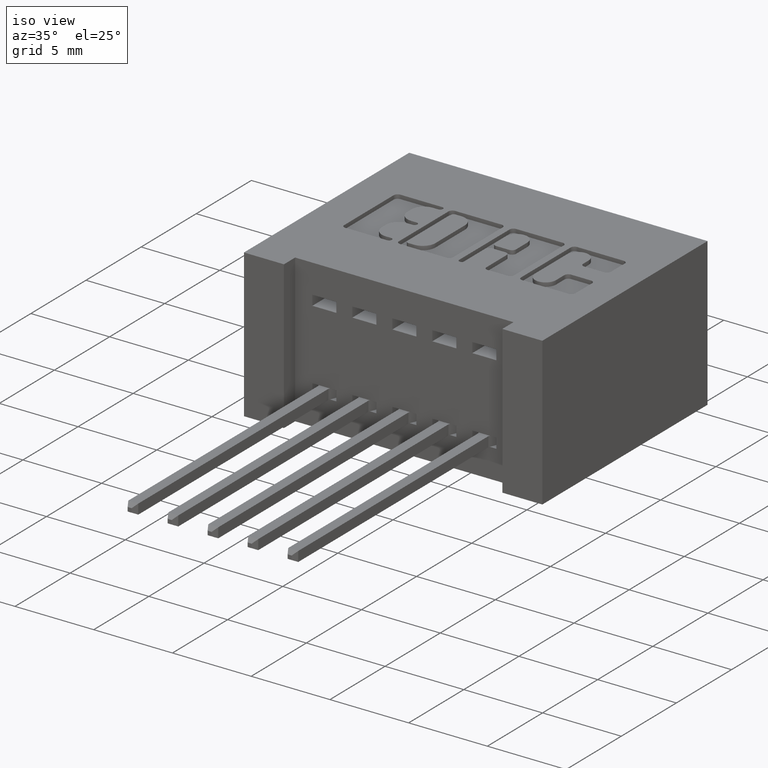
[diagram: clean part render]
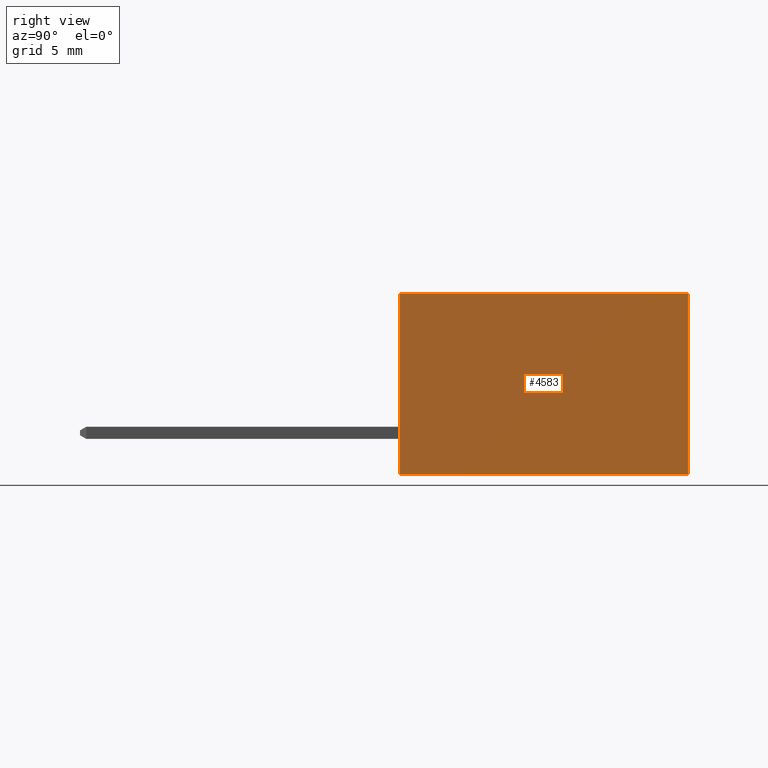
[diagram: tour spotlight — one face highlighted and labeled with its STEP entity id]
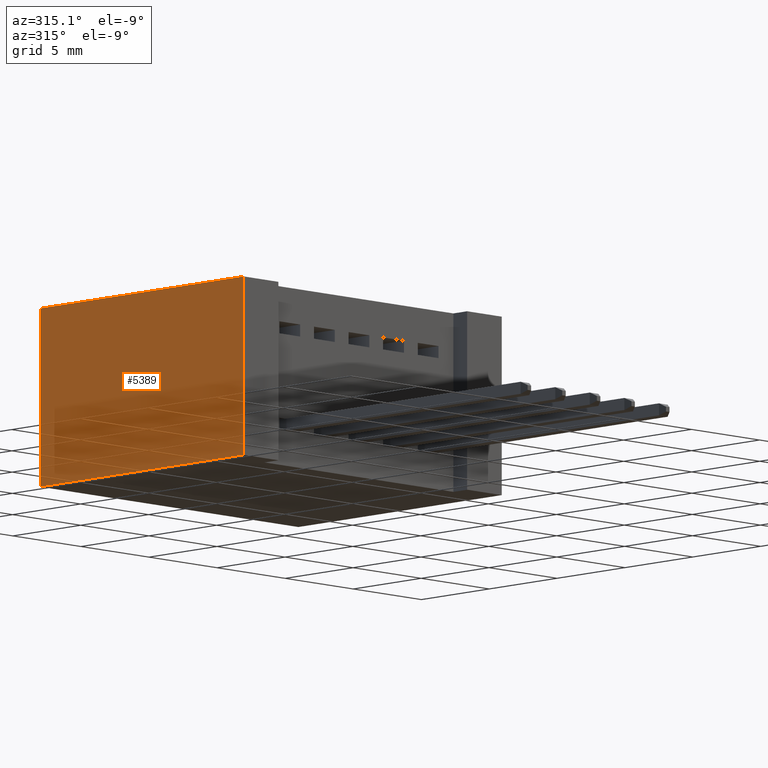
[diagram: tour spotlight — one face highlighted and labeled with its STEP entity id]
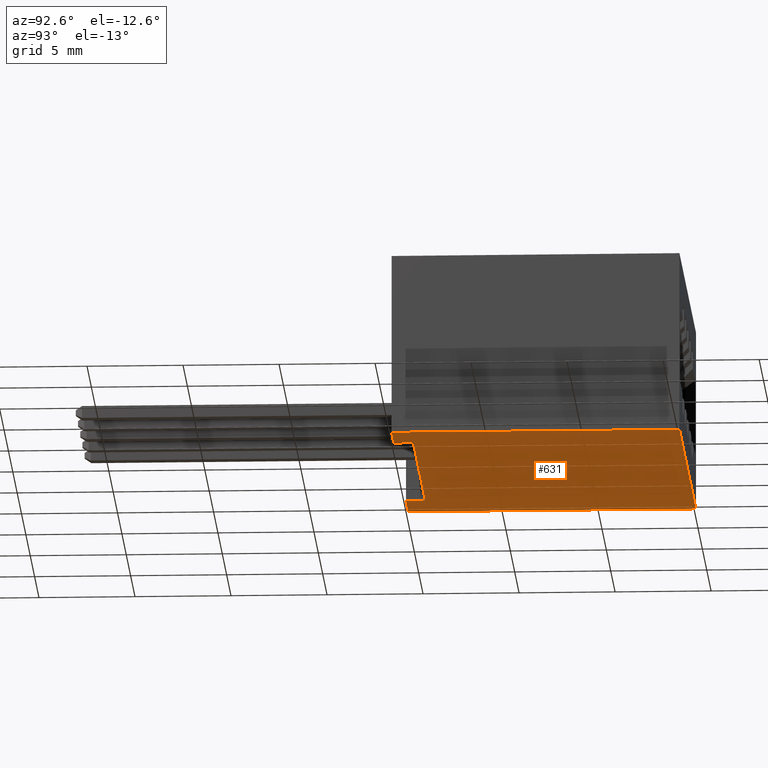
[diagram: tour spotlight — one face highlighted and labeled with its STEP entity id]
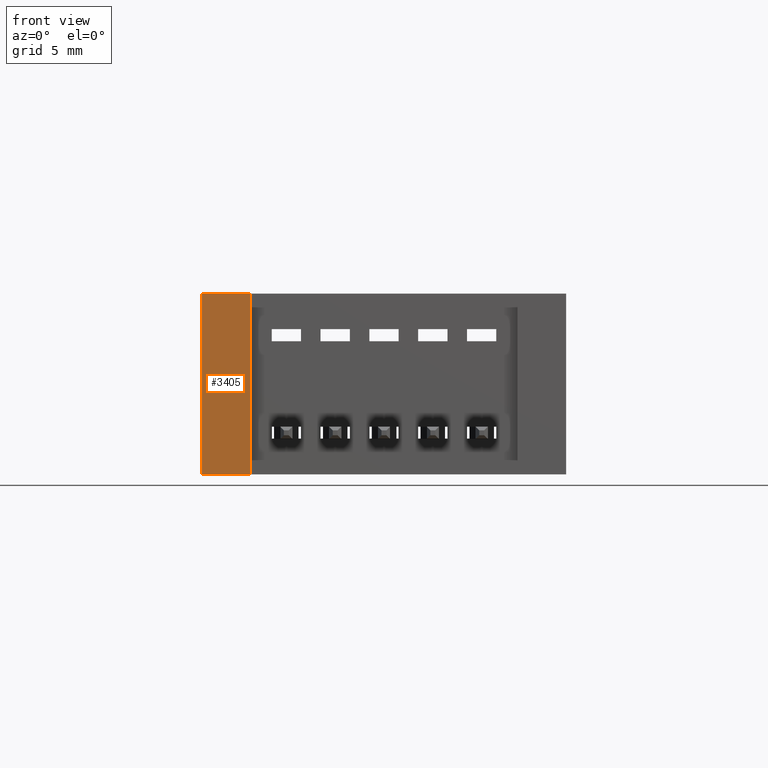
[diagram: tour spotlight — one face highlighted and labeled with its STEP entity id]
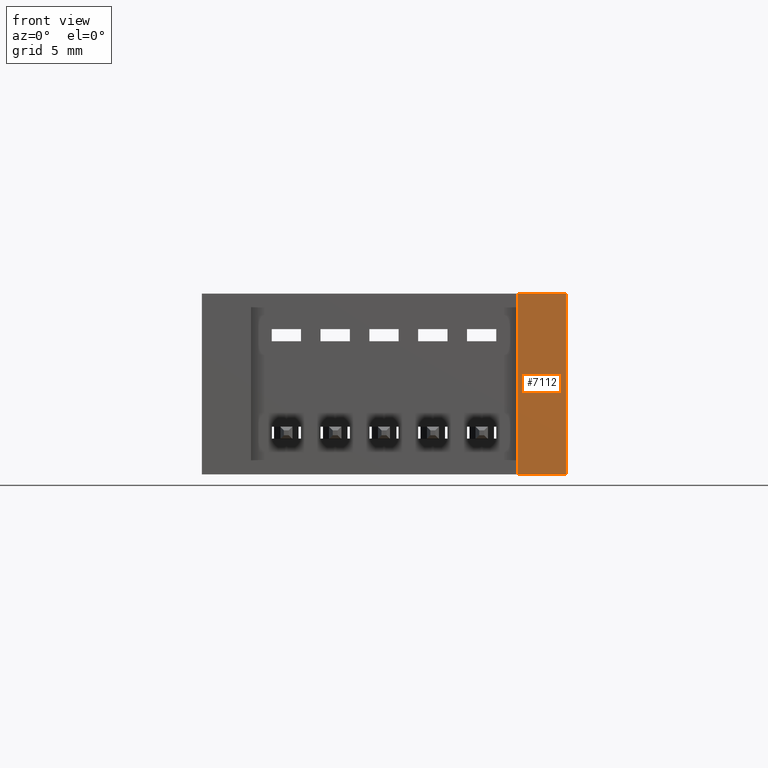
[diagram: tour spotlight — one face highlighted and labeled with its STEP entity id]
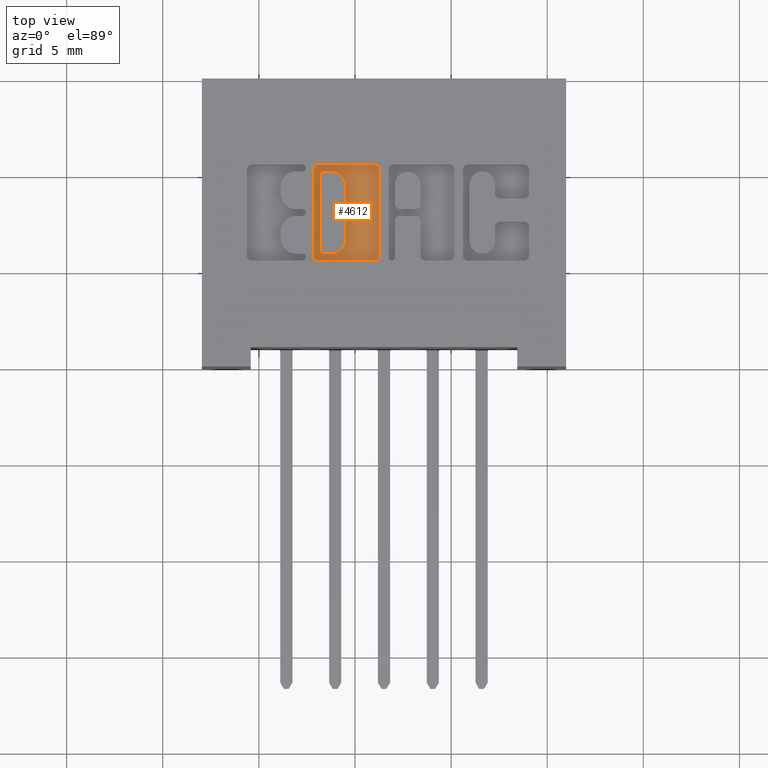
[diagram: tour spotlight — one face highlighted and labeled with its STEP entity id]
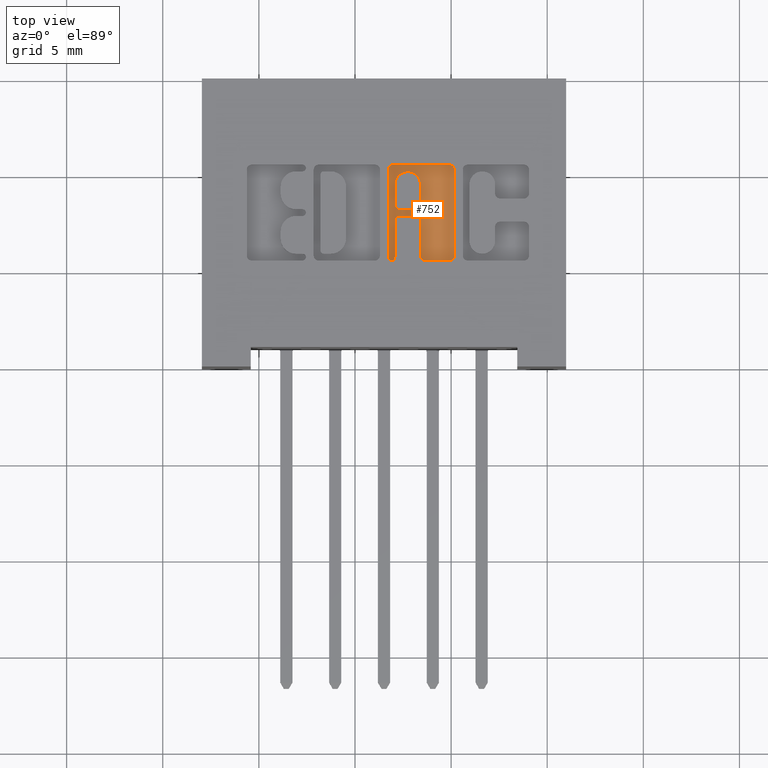
[diagram: tour spotlight — one face highlighted and labeled with its STEP entity id]
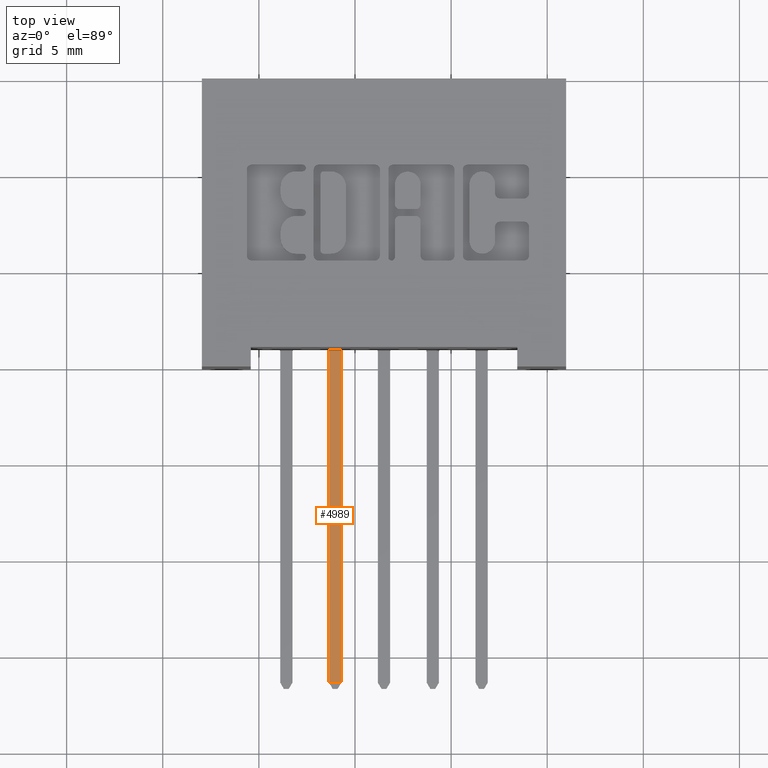
[diagram: tour spotlight — one face highlighted and labeled with its STEP entity id]
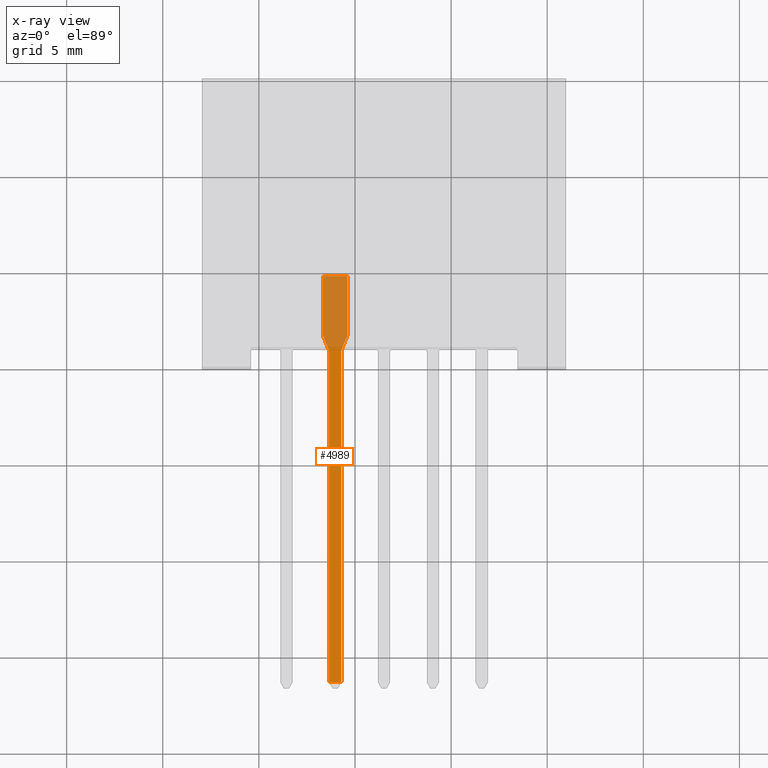
[diagram: x-ray of the same camera — body ghosted, this tour face saturated]
A machine part: a face-by-face anatomy tour. The part has 392 B-rep faces; the first image is the clean iso view, then the 8 largest visible faces are spotlighted one at a time (largest first), each with its STEP entity span.

Face 1 — right view, entity #4583. In plain terms, the highlighted planar face has unit normal (-1, 0, 0).
Definition (entity closure, byte-faithful):
#7 = LINE ( 'NONE', #5699, #5000 ) ;
#143 = CARTESIAN_POINT ( 'NONE',  ( 1.022999999999999500, 0.5899999999999999700, -0.3699999999999991100 ) ) ;
#532 = ORIENTED_EDGE ( 'NONE', *, *, #3551, .F. ) ;
#552 = VERTEX_POINT ( 'NONE', #5984 ) ;
#585 = VECTOR ( 'NONE', #1276, 39.37007874015748100 ) ;
#1176 = VERTEX_POINT ( 'NONE', #2151 ) ;
#1276 = DIRECTION ( 'NONE',  ( 0.0000000000000000000, 0.0000000000000000000, 1.000000000000000000 ) ) ;
#1520 = CARTESIAN_POINT ( 'NONE',  ( 1.022999999999999500, 0.0000000000000000000, -0.3699999999999991100 ) ) ;
#2010 = VERTEX_POINT ( 'NONE', #2825 ) ;
#2107 = LINE ( 'NONE', #3621, #585 ) ;
#2151 = CARTESIAN_POINT ( 'NONE',  ( 1.022999999999999500, 0.0000000000000000000, 0.0000000000000000000 ) ) ;
#2311 = PLANE ( 'NONE',  #4897 ) ;
#2334 = EDGE_CURVE ( 'NONE', #2010, #6561, #7, .T. ) ;
#2431 = ORIENTED_EDGE ( 'NONE', *, *, #2334, .T. ) ;
#2450 = CARTESIAN_POINT ( 'NONE',  ( 1.022999999999999500, 0.0000000000000000000, -1.083200093845833700E-016 ) ) ;
#2825 = CARTESIAN_POINT ( 'NONE',  ( 1.022999999999999500, 0.0000000000000000000, -0.3699999999999991100 ) ) ;
#2952 = VECTOR ( 'NONE', #3000, 39.37007874015748100 ) ;
#3000 = DIRECTION ( 'NONE',  ( 0.0000000000000000000, 0.0000000000000000000, 1.000000000000000000 ) ) ;
#3551 = EDGE_CURVE ( 'NONE', #1176, #552, #6801, .T. ) ;
#3621 = CARTESIAN_POINT ( 'NONE',  ( 1.022999999999999500, 0.5899999999999999700, -0.3699999999999991100 ) ) ;
#3731 = VECTOR ( 'NONE', #4955, 39.37007874015748100 ) ;
#3821 = ORIENTED_EDGE ( 'NONE', *, *, #6515, .F. ) ;
#4249 = DIRECTION ( 'NONE',  ( 0.0000000000000000000, 0.0000000000000000000, 1.000000000000000000 ) ) ;
#4583 = ADVANCED_FACE ( 'NONE', ( #5884 ), #2311, .F. ) ;
#4897 = AXIS2_PLACEMENT_3D ( 'NONE', #1520, #5338, #4249 ) ;
#4955 = DIRECTION ( 'NONE',  ( -0.0000000000000000000, 1.000000000000000000, -0.0000000000000000000 ) ) ;
#4994 = ORIENTED_EDGE ( 'NONE', *, *, #7099, .T. ) ;
#5000 = VECTOR ( 'NONE', #5623, 39.37007874015748100 ) ;
#5338 = DIRECTION ( 'NONE',  ( -1.000000000000000000, 0.0000000000000000000, 0.0000000000000000000 ) ) ;
#5623 = DIRECTION ( 'NONE',  ( -0.0000000000000000000, 1.000000000000000000, -0.0000000000000000000 ) ) ;
#5699 = CARTESIAN_POINT ( 'NONE',  ( 1.022999999999999500, 0.0000000000000000000, -0.3699999999999991100 ) ) ;
#5884 = FACE_OUTER_BOUND ( 'NONE', #6402, .T. ) ;
#5984 = CARTESIAN_POINT ( 'NONE',  ( 1.022999999999999500, 0.5899999999999999700, -1.083200093845833700E-016 ) ) ;
#6035 = LINE ( 'NONE', #7035, #2952 ) ;
#6402 = EDGE_LOOP ( 'NONE', ( #4994, #532, #3821, #2431 ) ) ;
#6515 = EDGE_CURVE ( 'NONE', #2010, #1176, #6035, .T. ) ;
#6561 = VERTEX_POINT ( 'NONE', #143 ) ;
#6801 = LINE ( 'NONE', #2450, #3731 ) ;
#7035 = CARTESIAN_POINT ( 'NONE',  ( 1.022999999999999500, 0.0000000000000000000, -0.3699999999999991100 ) ) ;
#7099 = EDGE_CURVE ( 'NONE', #6561, #552, #2107, .T. ) ;

Face 2 — auxiliary view, entity #5389. In plain terms, the highlighted planar face has unit normal (1, 0, 0).
Definition (entity closure, byte-faithful):
#67 = EDGE_LOOP ( 'NONE', ( #1352, #1484, #4811, #337 ) ) ;
#71 = DIRECTION ( 'NONE',  ( -0.0000000000000000000, 1.000000000000000000, -0.0000000000000000000 ) ) ;
#245 = EDGE_CURVE ( 'NONE', #2434, #418, #3492, .T. ) ;
#337 = ORIENTED_EDGE ( 'NONE', *, *, #245, .T. ) ;
#356 = CARTESIAN_POINT ( 'NONE',  ( 0.2770000000000000200, 0.5899999999999999700, -0.3700000000000000000 ) ) ;
#364 = VECTOR ( 'NONE', #2746, 39.37007874015748100 ) ;
#407 = FACE_OUTER_BOUND ( 'NONE', #67, .T. ) ;
#418 = VERTEX_POINT ( 'NONE', #2009 ) ;
#541 = CARTESIAN_POINT ( 'NONE',  ( 0.2770000000000000200, 0.0000000000000000000, -1.696135816819084800E-017 ) ) ;
#620 = EDGE_CURVE ( 'NONE', #888, #5132, #928, .T. ) ;
#681 = CARTESIAN_POINT ( 'NONE',  ( 0.2770000000000000200, 0.5899999999999999700, -0.3700000000000000000 ) ) ;
#815 = CARTESIAN_POINT ( 'NONE',  ( 0.2770000000000000200, 0.0000000000000000000, -0.3700000000000000000 ) ) ;
#888 = VERTEX_POINT ( 'NONE', #815 ) ;
#928 = LINE ( 'NONE', #5853, #7077 ) ;
#1352 = ORIENTED_EDGE ( 'NONE', *, *, #1575, .T. ) ;
#1398 = DIRECTION ( 'NONE',  ( -0.0000000000000000000, -0.0000000000000000000, -1.000000000000000000 ) ) ;
#1484 = ORIENTED_EDGE ( 'NONE', *, *, #620, .F. ) ;
#1575 = EDGE_CURVE ( 'NONE', #418, #5132, #5274, .T. ) ;
#1614 = CARTESIAN_POINT ( 'NONE',  ( 0.2770000000000000200, 0.0000000000000000000, -0.3700000000000000000 ) ) ;
#1792 = LINE ( 'NONE', #4268, #3370 ) ;
#2009 = CARTESIAN_POINT ( 'NONE',  ( 0.2770000000000000200, 0.5899999999999999700, -1.696135816819084800E-017 ) ) ;
#2348 = DIRECTION ( 'NONE',  ( -0.0000000000000000000, -0.0000000000000000000, -1.000000000000000000 ) ) ;
#2434 = VERTEX_POINT ( 'NONE', #541 ) ;
#2466 = CARTESIAN_POINT ( 'NONE',  ( 0.2770000000000000200, 0.0000000000000000000, -1.696135816819084800E-017 ) ) ;
#2746 = DIRECTION ( 'NONE',  ( -0.0000000000000000000, 1.000000000000000000, -0.0000000000000000000 ) ) ;
#3370 = VECTOR ( 'NONE', #2348, 39.37007874015748100 ) ;
#3492 = LINE ( 'NONE', #2466, #364 ) ;
#3607 = EDGE_CURVE ( 'NONE', #2434, #888, #1792, .T. ) ;
#3972 = PLANE ( 'NONE',  #6394 ) ;
#4268 = CARTESIAN_POINT ( 'NONE',  ( 0.2770000000000000200, 0.0000000000000000000, -0.3700000000000000000 ) ) ;
#4811 = ORIENTED_EDGE ( 'NONE', *, *, #3607, .F. ) ;
#5101 = VECTOR ( 'NONE', #1398, 39.37007874015748100 ) ;
#5132 = VERTEX_POINT ( 'NONE', #356 ) ;
#5274 = LINE ( 'NONE', #681, #5101 ) ;
#5389 = ADVANCED_FACE ( 'NONE', ( #407 ), #3972, .F. ) ;
#5566 = DIRECTION ( 'NONE',  ( 1.000000000000000000, 0.0000000000000000000, -0.0000000000000000000 ) ) ;
#5661 = DIRECTION ( 'NONE',  ( -0.0000000000000000000, 0.0000000000000000000, -1.000000000000000000 ) ) ;
#5853 = CARTESIAN_POINT ( 'NONE',  ( 0.2770000000000000200, 0.0000000000000000000, -0.3700000000000000000 ) ) ;
#6394 = AXIS2_PLACEMENT_3D ( 'NONE', #1614, #5566, #5661 ) ;
#7077 = VECTOR ( 'NONE', #71, 39.37007874015748100 ) ;

Face 3 — auxiliary view, entity #631. In plain terms, the highlighted planar face has unit normal (0, 0, 1).
Definition (entity closure, byte-faithful):
#7 = LINE ( 'NONE', #5699, #5000 ) ;
#71 = DIRECTION ( 'NONE',  ( -0.0000000000000000000, 1.000000000000000000, -0.0000000000000000000 ) ) ;
#143 = CARTESIAN_POINT ( 'NONE',  ( 1.022999999999999500, 0.5899999999999999700, -0.3699999999999991100 ) ) ;
#227 = PLANE ( 'NONE',  #4888 ) ;
#229 = ORIENTED_EDGE ( 'NONE', *, *, #3037, .T. ) ;
#354 = CARTESIAN_POINT ( 'NONE',  ( 0.0000000000000000000, 0.5899999999999999700, -0.3700000000000000000 ) ) ;
#356 = CARTESIAN_POINT ( 'NONE',  ( 0.2770000000000000200, 0.5899999999999999700, -0.3700000000000000000 ) ) ;
#527 = DIRECTION ( 'NONE',  ( 1.000000000000000000, 0.0000000000000000000, -0.0000000000000000000 ) ) ;
#540 = DIRECTION ( 'NONE',  ( 0.0000000000000000000, 0.0000000000000000000, 1.000000000000000000 ) ) ;
#620 = EDGE_CURVE ( 'NONE', #888, #5132, #928, .T. ) ;
#631 = ADVANCED_FACE ( 'NONE', ( #3842 ), #227, .F. ) ;
#815 = CARTESIAN_POINT ( 'NONE',  ( 0.2770000000000000200, 0.0000000000000000000, -0.3700000000000000000 ) ) ;
#888 = VERTEX_POINT ( 'NONE', #815 ) ;
#899 = DIRECTION ( 'NONE',  ( -1.000000000000000000, -0.0000000000000000000, -0.0000000000000000000 ) ) ;
#900 = EDGE_CURVE ( 'NONE', #6561, #5132, #6448, .T. ) ;
#928 = LINE ( 'NONE', #5853, #7077 ) ;
#950 = VERTEX_POINT ( 'NONE', #1616 ) ;
#1004 = VECTOR ( 'NONE', #899, 39.37007874015748100 ) ;
#1097 = LINE ( 'NONE', #5647, #4026 ) ;
#1546 = CARTESIAN_POINT ( 'NONE',  ( 0.0000000000000000000, 0.5899999999999999700, -0.3700000000000000000 ) ) ;
#1616 = CARTESIAN_POINT ( 'NONE',  ( 0.9229999999999999300, 0.04000000000000000100, -0.3700000000000001100 ) ) ;
#1724 = EDGE_CURVE ( 'NONE', #5955, #950, #1097, .T. ) ;
#1910 = DIRECTION ( 'NONE',  ( -1.000000000000000000, -0.0000000000000000000, -0.0000000000000000000 ) ) ;
#1941 = ORIENTED_EDGE ( 'NONE', *, *, #900, .F. ) ;
#1986 = DIRECTION ( 'NONE',  ( -1.000000000000000000, -0.0000000000000000000, -0.0000000000000000000 ) ) ;
#2010 = VERTEX_POINT ( 'NONE', #2825 ) ;
#2334 = EDGE_CURVE ( 'NONE', #2010, #6561, #7, .T. ) ;
#2407 = DIRECTION ( 'NONE',  ( 1.000000000000000000, 0.0000000000000000000, -1.250846150945175800E-016 ) ) ;
#2558 = CARTESIAN_POINT ( 'NONE',  ( 0.3770000000000000600, 0.0000000000000000000, -0.3700000000000000000 ) ) ;
#2666 = DIRECTION ( 'NONE',  ( -0.0000000000000000000, -1.000000000000000000, -0.0000000000000000000 ) ) ;
#2780 = ORIENTED_EDGE ( 'NONE', *, *, #1724, .F. ) ;
#2825 = CARTESIAN_POINT ( 'NONE',  ( 1.022999999999999500, 0.0000000000000000000, -0.3699999999999991100 ) ) ;
#2862 = CARTESIAN_POINT ( 'NONE',  ( 0.0000000000000000000, 0.0000000000000000000, -0.3700000000000000000 ) ) ;
#2958 = VECTOR ( 'NONE', #2666, 39.37007874015748100 ) ;
#3037 = EDGE_CURVE ( 'NONE', #4923, #888, #4112, .T. ) ;
#3077 = VECTOR ( 'NONE', #7154, 39.37007874015748100 ) ;
#3185 = CARTESIAN_POINT ( 'NONE',  ( 0.0000000000000000000, 0.0000000000000000000, -0.3700000000000000000 ) ) ;
#3348 = VECTOR ( 'NONE', #1910, 39.37007874015748100 ) ;
#3576 = VECTOR ( 'NONE', #1986, 39.37007874015748100 ) ;
#3842 = FACE_OUTER_BOUND ( 'NONE', #5273, .T. ) ;
#4026 = VECTOR ( 'NONE', #2407, 39.37007874015748100 ) ;
#4112 = LINE ( 'NONE', #3185, #1004 ) ;
#4308 = EDGE_CURVE ( 'NONE', #5955, #4923, #6509, .T. ) ;
#4878 = LINE ( 'NONE', #2862, #3348 ) ;
#4888 = AXIS2_PLACEMENT_3D ( 'NONE', #354, #540, #527 ) ;
#4899 = CARTESIAN_POINT ( 'NONE',  ( 0.9229999999999999300, 0.0000000000000000000, -0.3700000000000001100 ) ) ;
#4923 = VERTEX_POINT ( 'NONE', #2558 ) ;
#4928 = EDGE_CURVE ( 'NONE', #2010, #6678, #4878, .T. ) ;
#5000 = VECTOR ( 'NONE', #5623, 39.37007874015748100 ) ;
#5132 = VERTEX_POINT ( 'NONE', #356 ) ;
#5273 = EDGE_LOOP ( 'NONE', ( #7032, #5677, #2780, #6050, #229, #6408, #1941, #6579 ) ) ;
#5623 = DIRECTION ( 'NONE',  ( -0.0000000000000000000, 1.000000000000000000, -0.0000000000000000000 ) ) ;
#5647 = CARTESIAN_POINT ( 'NONE',  ( 0.3770000000000000600, 0.04000000000000000100, -0.3700000000000000000 ) ) ;
#5667 = CARTESIAN_POINT ( 'NONE',  ( 0.3770000000000000600, 0.04000000000000000100, -0.3700000000000000000 ) ) ;
#5677 = ORIENTED_EDGE ( 'NONE', *, *, #6763, .F. ) ;
#5699 = CARTESIAN_POINT ( 'NONE',  ( 1.022999999999999500, 0.0000000000000000000, -0.3699999999999991100 ) ) ;
#5853 = CARTESIAN_POINT ( 'NONE',  ( 0.2770000000000000200, 0.0000000000000000000, -0.3700000000000000000 ) ) ;
#5955 = VERTEX_POINT ( 'NONE', #5974 ) ;
#5974 = CARTESIAN_POINT ( 'NONE',  ( 0.3770000000000000600, 0.04000000000000000100, -0.3700000000000000000 ) ) ;
#6043 = LINE ( 'NONE', #6137, #2958 ) ;
#6050 = ORIENTED_EDGE ( 'NONE', *, *, #4308, .T. ) ;
#6137 = CARTESIAN_POINT ( 'NONE',  ( 0.9229999999999999300, 0.04000000000000000100, -0.3700000000000001100 ) ) ;
#6408 = ORIENTED_EDGE ( 'NONE', *, *, #620, .T. ) ;
#6448 = LINE ( 'NONE', #1546, #3576 ) ;
#6509 = LINE ( 'NONE', #5667, #3077 ) ;
#6561 = VERTEX_POINT ( 'NONE', #143 ) ;
#6579 = ORIENTED_EDGE ( 'NONE', *, *, #2334, .F. ) ;
#6678 = VERTEX_POINT ( 'NONE', #4899 ) ;
#6763 = EDGE_CURVE ( 'NONE', #950, #6678, #6043, .T. ) ;
#7032 = ORIENTED_EDGE ( 'NONE', *, *, #4928, .T. ) ;
#7077 = VECTOR ( 'NONE', #71, 39.37007874015748100 ) ;
#7154 = DIRECTION ( 'NONE',  ( -0.0000000000000000000, -1.000000000000000000, -0.0000000000000000000 ) ) ;

Face 4 — front view, entity #3405. In plain terms, the highlighted planar face has unit normal (0, -1, 0).
Definition (entity closure, byte-faithful):
#307 = DIRECTION ( 'NONE',  ( 0.0000000000000000000, -0.0000000000000000000, -1.000000000000000000 ) ) ;
#541 = CARTESIAN_POINT ( 'NONE',  ( 0.2770000000000000200, 0.0000000000000000000, -1.696135816819084800E-017 ) ) ;
#594 = EDGE_CURVE ( 'NONE', #3425, #4923, #2650, .T. ) ;
#792 = ORIENTED_EDGE ( 'NONE', *, *, #978, .F. ) ;
#815 = CARTESIAN_POINT ( 'NONE',  ( 0.2770000000000000200, 0.0000000000000000000, -0.3700000000000000000 ) ) ;
#888 = VERTEX_POINT ( 'NONE', #815 ) ;
#899 = DIRECTION ( 'NONE',  ( -1.000000000000000000, -0.0000000000000000000, -0.0000000000000000000 ) ) ;
#978 = EDGE_CURVE ( 'NONE', #2434, #3425, #2821, .T. ) ;
#1004 = VECTOR ( 'NONE', #899, 39.37007874015748100 ) ;
#1485 = PLANE ( 'NONE',  #1708 ) ;
#1708 = AXIS2_PLACEMENT_3D ( 'NONE', #3520, #1964, #307 ) ;
#1710 = FACE_OUTER_BOUND ( 'NONE', #4674, .T. ) ;
#1792 = LINE ( 'NONE', #4268, #3370 ) ;
#1964 = DIRECTION ( 'NONE',  ( 0.0000000000000000000, -1.000000000000000000, 0.0000000000000000000 ) ) ;
#2348 = DIRECTION ( 'NONE',  ( -0.0000000000000000000, -0.0000000000000000000, -1.000000000000000000 ) ) ;
#2434 = VERTEX_POINT ( 'NONE', #541 ) ;
#2518 = ORIENTED_EDGE ( 'NONE', *, *, #3037, .F. ) ;
#2558 = CARTESIAN_POINT ( 'NONE',  ( 0.3770000000000000600, 0.0000000000000000000, -0.3700000000000000000 ) ) ;
#2650 = LINE ( 'NONE', #6210, #5552 ) ;
#2821 = LINE ( 'NONE', #3295, #7242 ) ;
#3037 = EDGE_CURVE ( 'NONE', #4923, #888, #4112, .T. ) ;
#3185 = CARTESIAN_POINT ( 'NONE',  ( 0.0000000000000000000, 0.0000000000000000000, -0.3700000000000000000 ) ) ;
#3295 = CARTESIAN_POINT ( 'NONE',  ( 0.0000000000000000000, 0.0000000000000000000, 0.0000000000000000000 ) ) ;
#3370 = VECTOR ( 'NONE', #2348, 39.37007874015748100 ) ;
#3405 = ADVANCED_FACE ( 'NONE', ( #1710 ), #1485, .T. ) ;
#3425 = VERTEX_POINT ( 'NONE', #7051 ) ;
#3520 = CARTESIAN_POINT ( 'NONE',  ( 0.0000000000000000000, 0.0000000000000000000, -0.3700000000000000000 ) ) ;
#3607 = EDGE_CURVE ( 'NONE', #2434, #888, #1792, .T. ) ;
#3705 = ORIENTED_EDGE ( 'NONE', *, *, #594, .F. ) ;
#4112 = LINE ( 'NONE', #3185, #1004 ) ;
#4268 = CARTESIAN_POINT ( 'NONE',  ( 0.2770000000000000200, 0.0000000000000000000, -0.3700000000000000000 ) ) ;
#4674 = EDGE_LOOP ( 'NONE', ( #3705, #792, #6945, #2518 ) ) ;
#4829 = DIRECTION ( 'NONE',  ( 1.000000000000000000, 0.0000000000000000000, 0.0000000000000000000 ) ) ;
#4923 = VERTEX_POINT ( 'NONE', #2558 ) ;
#5552 = VECTOR ( 'NONE', #6833, 39.37007874015748100 ) ;
#6210 = CARTESIAN_POINT ( 'NONE',  ( 0.3770000000000000600, 0.0000000000000000000, -0.3700000000000000000 ) ) ;
#6833 = DIRECTION ( 'NONE',  ( -0.0000000000000000000, -0.0000000000000000000, -1.000000000000000000 ) ) ;
#6945 = ORIENTED_EDGE ( 'NONE', *, *, #3607, .T. ) ;
#7051 = CARTESIAN_POINT ( 'NONE',  ( 0.3770000000000000600, 0.0000000000000000000, 0.0000000000000000000 ) ) ;
#7242 = VECTOR ( 'NONE', #4829, 39.37007874015748100 ) ;

Face 5 — front view, entity #7112. In plain terms, the highlighted planar face has unit normal (0, -1, 0).
Definition (entity closure, byte-faithful):
#522 = DIRECTION ( 'NONE',  ( 0.0000000000000000000, 0.0000000000000000000, 1.000000000000000000 ) ) ;
#1044 = EDGE_CURVE ( 'NONE', #1805, #1176, #1270, .T. ) ;
#1126 = CARTESIAN_POINT ( 'NONE',  ( 0.9229999999999999300, 0.0000000000000000000, -1.895600338963814900E-033 ) ) ;
#1176 = VERTEX_POINT ( 'NONE', #2151 ) ;
#1270 = LINE ( 'NONE', #5916, #2641 ) ;
#1502 = LINE ( 'NONE', #2276, #7443 ) ;
#1805 = VERTEX_POINT ( 'NONE', #1126 ) ;
#1910 = DIRECTION ( 'NONE',  ( -1.000000000000000000, -0.0000000000000000000, -0.0000000000000000000 ) ) ;
#2010 = VERTEX_POINT ( 'NONE', #2825 ) ;
#2138 = ORIENTED_EDGE ( 'NONE', *, *, #4928, .F. ) ;
#2151 = CARTESIAN_POINT ( 'NONE',  ( 1.022999999999999500, 0.0000000000000000000, 0.0000000000000000000 ) ) ;
#2276 = CARTESIAN_POINT ( 'NONE',  ( 0.9229999999999999300, 0.0000000000000000000, -0.3700000000000001100 ) ) ;
#2409 = ORIENTED_EDGE ( 'NONE', *, *, #1044, .F. ) ;
#2421 = CARTESIAN_POINT ( 'NONE',  ( 0.0000000000000000000, 0.0000000000000000000, -0.3700000000000000000 ) ) ;
#2641 = VECTOR ( 'NONE', #4450, 39.37007874015748100 ) ;
#2825 = CARTESIAN_POINT ( 'NONE',  ( 1.022999999999999500, 0.0000000000000000000, -0.3699999999999991100 ) ) ;
#2862 = CARTESIAN_POINT ( 'NONE',  ( 0.0000000000000000000, 0.0000000000000000000, -0.3700000000000000000 ) ) ;
#2952 = VECTOR ( 'NONE', #3000, 39.37007874015748100 ) ;
#3000 = DIRECTION ( 'NONE',  ( 0.0000000000000000000, 0.0000000000000000000, 1.000000000000000000 ) ) ;
#3046 = DIRECTION ( 'NONE',  ( 0.0000000000000000000, -1.000000000000000000, 0.0000000000000000000 ) ) ;
#3348 = VECTOR ( 'NONE', #1910, 39.37007874015748100 ) ;
#4450 = DIRECTION ( 'NONE',  ( 1.000000000000000000, 0.0000000000000000000, 0.0000000000000000000 ) ) ;
#4766 = AXIS2_PLACEMENT_3D ( 'NONE', #2421, #3046, #7075 ) ;
#4878 = LINE ( 'NONE', #2862, #3348 ) ;
#4899 = CARTESIAN_POINT ( 'NONE',  ( 0.9229999999999999300, 0.0000000000000000000, -0.3700000000000001100 ) ) ;
#4928 = EDGE_CURVE ( 'NONE', #2010, #6678, #4878, .T. ) ;
#5069 = ORIENTED_EDGE ( 'NONE', *, *, #6982, .F. ) ;
#5240 = ORIENTED_EDGE ( 'NONE', *, *, #6515, .T. ) ;
#5394 = FACE_OUTER_BOUND ( 'NONE', #5986, .T. ) ;
#5916 = CARTESIAN_POINT ( 'NONE',  ( 0.0000000000000000000, 0.0000000000000000000, 0.0000000000000000000 ) ) ;
#5986 = EDGE_LOOP ( 'NONE', ( #5069, #2138, #5240, #2409 ) ) ;
#6035 = LINE ( 'NONE', #7035, #2952 ) ;
#6501 = PLANE ( 'NONE',  #4766 ) ;
#6515 = EDGE_CURVE ( 'NONE', #2010, #1176, #6035, .T. ) ;
#6678 = VERTEX_POINT ( 'NONE', #4899 ) ;
#6982 = EDGE_CURVE ( 'NONE', #6678, #1805, #1502, .T. ) ;
#7035 = CARTESIAN_POINT ( 'NONE',  ( 1.022999999999999500, 0.0000000000000000000, -0.3699999999999991100 ) ) ;
#7075 = DIRECTION ( 'NONE',  ( 0.0000000000000000000, -0.0000000000000000000, -1.000000000000000000 ) ) ;
#7112 = ADVANCED_FACE ( 'NONE', ( #5394 ), #6501, .T. ) ;
#7443 = VECTOR ( 'NONE', #522, 39.37007874015748100 ) ;

Face 6 — top view, entity #4612. In plain terms, the highlighted planar face has unit normal (0, 0, 1).
Definition (entity closure, byte-faithful):
#122 = VERTEX_POINT ( 'NONE', #5123 ) ;
#124 = VECTOR ( 'NONE', #3991, 39.37007874015748100 ) ;
#142 = CARTESIAN_POINT ( 'NONE',  ( 0.5059550397591691100, 0.2266589681657897300, -0.01000000000000000000 ) ) ;
#363 = EDGE_CURVE ( 'NONE', #2497, #6770, #1013, .T. ) ;
#387 = CIRCLE ( 'NONE', #1911, 0.009815670203806891800 ) ;
#544 = ORIENTED_EDGE ( 'NONE', *, *, #1615, .T. ) ;
#546 = CIRCLE ( 'NONE', #698, 0.006870969142663253800 ) ;
#570 = EDGE_CURVE ( 'NONE', #6192, #6959, #5725, .T. ) ;
#573 = DIRECTION ( 'NONE',  ( 0.0000000000000000000, -1.000000000000000000, 0.0000000000000000000 ) ) ;
#645 = VECTOR ( 'NONE', #1700, 39.37007874015748100 ) ;
#654 = EDGE_CURVE ( 'NONE', #4549, #3361, #3660, .T. ) ;
#698 = AXIS2_PLACEMENT_3D ( 'NONE', #6107, #4196, #4263 ) ;
#709 = ORIENTED_EDGE ( 'NONE', *, *, #5603, .T. ) ;
#779 = DIRECTION ( 'NONE',  ( -0.0000000000000000000, 0.0000000000000000000, 1.000000000000000000 ) ) ;
#832 = DIRECTION ( 'NONE',  ( 1.000000000000000000, 0.0000000000000000000, 0.0000000000000000000 ) ) ;
#861 = CARTESIAN_POINT ( 'NONE',  ( 0.5157707099629758000, 0.2266589681657897300, -0.01000000000000000000 ) ) ;
#862 = DIRECTION ( 'NONE',  ( -0.0000000000000000000, 0.0000000000000000000, 1.000000000000000000 ) ) ;
#867 = VECTOR ( 'NONE', #5581, 39.37007874015748100 ) ;
#893 = CARTESIAN_POINT ( 'NONE',  ( 0.5265679471871663700, 0.3925437946100565600, -0.01000000000000000000 ) ) ;
#1007 = EDGE_CURVE ( 'NONE', #6959, #4549, #3014, .T. ) ;
#1013 = CIRCLE ( 'NONE', #6569, 0.03141014465217194900 ) ;
#1057 = ORIENTED_EDGE ( 'NONE', *, *, #654, .T. ) ;
#1066 = ORIENTED_EDGE ( 'NONE', *, *, #6473, .T. ) ;
#1071 = CARTESIAN_POINT ( 'NONE',  ( 0.6414112885716688500, 0.0000000000000000000, -0.01000000000000000000 ) ) ;
#1128 = EDGE_CURVE ( 'NONE', #7420, #3256, #546, .T. ) ;
#1186 = EDGE_CURVE ( 'NONE', #3361, #4999, #4649, .T. ) ;
#1536 = LINE ( 'NONE', #4349, #645 ) ;
#1555 = CARTESIAN_POINT ( 'NONE',  ( 0.6315956183678959100, 0.4131567020380508300, -0.01000000000000000000 ) ) ;
#1613 = CARTESIAN_POINT ( 'NONE',  ( 0.0000000000000000000, 0.2305852362473140600, -0.01000000000000000000 ) ) ;
#1615 = EDGE_CURVE ( 'NONE', #7420, #4136, #4919, .T. ) ;
#1624 = VERTEX_POINT ( 'NONE', #3504 ) ;
#1676 = VECTOR ( 'NONE', #2776, 39.37007874015748100 ) ;
#1700 = DIRECTION ( 'NONE',  ( 1.000000000000000000, 0.0000000000000000000, 0.0000000000000000000 ) ) ;
#1840 = ORIENTED_EDGE ( 'NONE', *, *, #2791, .T. ) ;
#1911 = AXIS2_PLACEMENT_3D ( 'NONE', #5858, #2371, #6437 ) ;
#2005 = CARTESIAN_POINT ( 'NONE',  ( 0.5265679471871663700, 0.3994147637527242800, -0.01000000000000000000 ) ) ;
#2038 = ORIENTED_EDGE ( 'NONE', *, *, #1186, .T. ) ;
#2215 = EDGE_LOOP ( 'NONE', ( #2748, #3794, #7379, #6034, #4735, #709, #5220, #544 ) ) ;
#2223 = VERTEX_POINT ( 'NONE', #4266 ) ;
#2233 = EDGE_CURVE ( 'NONE', #4314, #4136, #6704, .T. ) ;
#2242 = AXIS2_PLACEMENT_3D ( 'NONE', #861, #779, #2303 ) ;
#2303 = DIRECTION ( 'NONE',  ( 1.000000000000000000, 0.0000000000000000000, 0.0000000000000000000 ) ) ;
#2371 = DIRECTION ( 'NONE',  ( -0.0000000000000000000, 0.0000000000000000000, 1.000000000000000000 ) ) ;
#2497 = VERTEX_POINT ( 'NONE', #5622 ) ;
#2561 = DIRECTION ( 'NONE',  ( 1.000000000000000000, 0.0000000000000000000, 0.0000000000000000000 ) ) ;
#2614 = FACE_BOUND ( 'NONE', #2215, .T. ) ;
#2748 = ORIENTED_EDGE ( 'NONE', *, *, #2233, .F. ) ;
#2776 = DIRECTION ( 'NONE',  ( -1.000000000000000000, 0.0000000000000000000, 0.0000000000000000000 ) ) ;
#2791 = EDGE_CURVE ( 'NONE', #4999, #3997, #1536, .T. ) ;
#2794 = DIRECTION ( 'NONE',  ( 0.0000000000000000000, 1.000000000000000000, -0.0000000000000000000 ) ) ;
#2819 = PLANE ( 'NONE',  #5659 ) ;
#2947 = CARTESIAN_POINT ( 'NONE',  ( 0.5157707099630100000, 0.4033410318342098800, -0.01000000000000000000 ) ) ;
#2975 = CARTESIAN_POINT ( 'NONE',  ( 0.5059550397591691100, 0.4033410318342098800, -0.01000000000000000000 ) ) ;
#3014 = CIRCLE ( 'NONE', #3597, 0.009815670203840902800 ) ;
#3083 = CARTESIAN_POINT ( 'NONE',  ( 0.5196969780444985500, 0.0000000000000000000, -0.01000000000000000000 ) ) ;
#3154 = ORIENTED_EDGE ( 'NONE', *, *, #570, .T. ) ;
#3174 = CARTESIAN_POINT ( 'NONE',  ( 0.5408006689826733200, 0.2619953808994843200, -0.01000000000000000000 ) ) ;
#3187 = CARTESIAN_POINT ( 'NONE',  ( 0.6315956183678277400, 0.4033410318342097700, -0.01000000000000000000 ) ) ;
#3252 = LINE ( 'NONE', #1613, #1676 ) ;
#3256 = VERTEX_POINT ( 'NONE', #5429 ) ;
#3267 = CARTESIAN_POINT ( 'NONE',  ( 0.5408006689826777600, 0.3994147637527242800, -0.01000000000000000000 ) ) ;
#3361 = VERTEX_POINT ( 'NONE', #142 ) ;
#3368 = CARTESIAN_POINT ( 'NONE',  ( 0.6414112885716688500, 0.2266589681657897300, -0.01000000000000000000 ) ) ;
#3504 = CARTESIAN_POINT ( 'NONE',  ( 0.5408006689826733200, 0.2305852362473140600, -0.01000000000000000000 ) ) ;
#3597 = AXIS2_PLACEMENT_3D ( 'NONE', #2947, #7316, #6042 ) ;
#3613 = CIRCLE ( 'NONE', #6881, 0.009815670203841039800 ) ;
#3660 = LINE ( 'NONE', #5956, #6540 ) ;
#3706 = DIRECTION ( 'NONE',  ( -0.0000000000000000000, 0.0000000000000000000, 1.000000000000000000 ) ) ;
#3758 = DIRECTION ( 'NONE',  ( 1.000000000000000000, 0.0000000000000000000, 0.0000000000000000000 ) ) ;
#3772 = EDGE_CURVE ( 'NONE', #4314, #6770, #5532, .T. ) ;
#3774 = DIRECTION ( 'NONE',  ( 1.000000000000000000, 0.0000000000000000000, 0.0000000000000000000 ) ) ;
#3794 = ORIENTED_EDGE ( 'NONE', *, *, #3772, .T. ) ;
#3820 = VECTOR ( 'NONE', #2561, 39.37007874015748100 ) ;
#3991 = DIRECTION ( 'NONE',  ( 0.0000000000000000000, 1.000000000000000000, -0.0000000000000000000 ) ) ;
#3997 = VERTEX_POINT ( 'NONE', #7034 ) ;
#4003 = EDGE_LOOP ( 'NONE', ( #6175, #5506, #3154, #5100, #1057, #2038, #1840, #1066 ) ) ;
#4136 = VERTEX_POINT ( 'NONE', #7410 ) ;
#4140 = CIRCLE ( 'NONE', #7438, 0.03141014465217023500 ) ;
#4196 = DIRECTION ( 'NONE',  ( -0.0000000000000000000, 0.0000000000000000000, 1.000000000000000000 ) ) ;
#4263 = DIRECTION ( 'NONE',  ( 1.000000000000000000, 0.0000000000000000000, 0.0000000000000000000 ) ) ;
#4266 = CARTESIAN_POINT ( 'NONE',  ( 0.5722108136348435000, 0.2619953808994843200, -0.01000000000000000000 ) ) ;
#4314 = VERTEX_POINT ( 'NONE', #2005 ) ;
#4349 = CARTESIAN_POINT ( 'NONE',  ( 0.0000000000000000000, 0.2168432979619829800, -0.01000000000000000000 ) ) ;
#4384 = VECTOR ( 'NONE', #6674, 39.37007874015748100 ) ;
#4432 = CARTESIAN_POINT ( 'NONE',  ( 0.0000000000000000000, 0.0000000000000000000, -0.01000000000000000000 ) ) ;
#4438 = VERTEX_POINT ( 'NONE', #3368 ) ;
#4549 = VERTEX_POINT ( 'NONE', #2975 ) ;
#4612 = ADVANCED_FACE ( 'NONE', ( #2614, #7042 ), #2819, .T. ) ;
#4649 = CIRCLE ( 'NONE', #2242, 0.009815670203806754800 ) ;
#4735 = ORIENTED_EDGE ( 'NONE', *, *, #7247, .F. ) ;
#4774 = LINE ( 'NONE', #1071, #124 ) ;
#4919 = LINE ( 'NONE', #3083, #6452 ) ;
#4927 = CARTESIAN_POINT ( 'NONE',  ( 0.5408006689826715400, 0.3680046191005523800, -0.01000000000000000000 ) ) ;
#4999 = VERTEX_POINT ( 'NONE', #7123 ) ;
#5015 = DIRECTION ( 'NONE',  ( 1.000000000000000000, 0.0000000000000000000, 0.0000000000000000000 ) ) ;
#5100 = ORIENTED_EDGE ( 'NONE', *, *, #1007, .T. ) ;
#5123 = CARTESIAN_POINT ( 'NONE',  ( 0.6414112885716688500, 0.4033410318342098800, -0.01000000000000000000 ) ) ;
#5220 = ORIENTED_EDGE ( 'NONE', *, *, #1128, .F. ) ;
#5429 = CARTESIAN_POINT ( 'NONE',  ( 0.5265679471871618200, 0.2305852362473140600, -0.01000000000000000000 ) ) ;
#5506 = ORIENTED_EDGE ( 'NONE', *, *, #6039, .T. ) ;
#5532 = LINE ( 'NONE', #5738, #3820 ) ;
#5581 = DIRECTION ( 'NONE',  ( 0.0000000000000000000, -1.000000000000000000, 0.0000000000000000000 ) ) ;
#5603 = EDGE_CURVE ( 'NONE', #1624, #3256, #3252, .T. ) ;
#5622 = CARTESIAN_POINT ( 'NONE',  ( 0.5722108136348435000, 0.3680046191005523800, -0.01000000000000000000 ) ) ;
#5635 = CARTESIAN_POINT ( 'NONE',  ( 0.5196969780444985500, 0.2374562053899772800, -0.01000000000000000000 ) ) ;
#5659 = AXIS2_PLACEMENT_3D ( 'NONE', #4432, #3706, #5015 ) ;
#5725 = LINE ( 'NONE', #6656, #4384 ) ;
#5738 = CARTESIAN_POINT ( 'NONE',  ( 0.0000000000000000000, 0.3994147637527242800, -0.01000000000000000000 ) ) ;
#5858 = CARTESIAN_POINT ( 'NONE',  ( 0.6315956183678619300, 0.2266589681657897300, -0.01000000000000000000 ) ) ;
#5956 = CARTESIAN_POINT ( 'NONE',  ( 0.5059550397591691100, 0.0000000000000000000, -0.01000000000000000000 ) ) ;
#6034 = ORIENTED_EDGE ( 'NONE', *, *, #6164, .T. ) ;
#6039 = EDGE_CURVE ( 'NONE', #122, #6192, #3613, .T. ) ;
#6042 = DIRECTION ( 'NONE',  ( 1.000000000000000000, 0.0000000000000000000, 0.0000000000000000000 ) ) ;
#6103 = AXIS2_PLACEMENT_3D ( 'NONE', #893, #862, #832 ) ;
#6107 = CARTESIAN_POINT ( 'NONE',  ( 0.5265679471871618200, 0.2374562053899772800, -0.01000000000000000000 ) ) ;
#6164 = EDGE_CURVE ( 'NONE', #2497, #2223, #7017, .T. ) ;
#6171 = CARTESIAN_POINT ( 'NONE',  ( 0.5722108136348435000, 0.0000000000000000000, -0.01000000000000000000 ) ) ;
#6175 = ORIENTED_EDGE ( 'NONE', *, *, #6284, .T. ) ;
#6192 = VERTEX_POINT ( 'NONE', #1555 ) ;
#6284 = EDGE_CURVE ( 'NONE', #4438, #122, #4774, .T. ) ;
#6437 = DIRECTION ( 'NONE',  ( 1.000000000000000000, 0.0000000000000000000, 0.0000000000000000000 ) ) ;
#6452 = VECTOR ( 'NONE', #2794, 39.37007874015748100 ) ;
#6473 = EDGE_CURVE ( 'NONE', #3997, #4438, #387, .T. ) ;
#6540 = VECTOR ( 'NONE', #573, 39.37007874015748100 ) ;
#6569 = AXIS2_PLACEMENT_3D ( 'NONE', #4927, #6960, #6754 ) ;
#6656 = CARTESIAN_POINT ( 'NONE',  ( 0.0000000000000000000, 0.4131567020380508300, -0.01000000000000000000 ) ) ;
#6674 = DIRECTION ( 'NONE',  ( -1.000000000000000000, 0.0000000000000000000, 0.0000000000000000000 ) ) ;
#6704 = CIRCLE ( 'NONE', #6103, 0.006870969142667761500 ) ;
#6754 = DIRECTION ( 'NONE',  ( 1.000000000000000000, 0.0000000000000000000, 0.0000000000000000000 ) ) ;
#6770 = VERTEX_POINT ( 'NONE', #3267 ) ;
#6881 = AXIS2_PLACEMENT_3D ( 'NONE', #3187, #7211, #3774 ) ;
#6959 = VERTEX_POINT ( 'NONE', #7454 ) ;
#6960 = DIRECTION ( 'NONE',  ( -0.0000000000000000000, 0.0000000000000000000, 1.000000000000000000 ) ) ;
#7017 = LINE ( 'NONE', #6171, #867 ) ;
#7034 = CARTESIAN_POINT ( 'NONE',  ( 0.6315956183678619300, 0.2168432979619829800, -0.01000000000000000000 ) ) ;
#7042 = FACE_OUTER_BOUND ( 'NONE', #4003, .T. ) ;
#7123 = CARTESIAN_POINT ( 'NONE',  ( 0.5157707099629758000, 0.2168432979619829800, -0.01000000000000000000 ) ) ;
#7191 = DIRECTION ( 'NONE',  ( -0.0000000000000000000, 0.0000000000000000000, 1.000000000000000000 ) ) ;
#7211 = DIRECTION ( 'NONE',  ( -0.0000000000000000000, 0.0000000000000000000, 1.000000000000000000 ) ) ;
#7247 = EDGE_CURVE ( 'NONE', #1624, #2223, #4140, .T. ) ;
#7316 = DIRECTION ( 'NONE',  ( -0.0000000000000000000, 0.0000000000000000000, 1.000000000000000000 ) ) ;
#7379 = ORIENTED_EDGE ( 'NONE', *, *, #363, .F. ) ;
#7410 = CARTESIAN_POINT ( 'NONE',  ( 0.5196969780444985500, 0.3925437946100565600, -0.01000000000000000000 ) ) ;
#7420 = VERTEX_POINT ( 'NONE', #5635 ) ;
#7438 = AXIS2_PLACEMENT_3D ( 'NONE', #3174, #7191, #3758 ) ;
#7454 = CARTESIAN_POINT ( 'NONE',  ( 0.5157707099630100000, 0.4131567020380508300, -0.01000000000000000000 ) ) ;

Face 7 — top view, entity #752. In plain terms, the highlighted planar face has unit normal (0, 0, 1).
Definition (entity closure, byte-faithful):
#27 = EDGE_CURVE ( 'NONE', #4143, #1483, #6631, .T. ) ;
#49 = CIRCLE ( 'NONE', #2617, 0.009815670203803203800 ) ;
#72 = VECTOR ( 'NONE', #7060, 39.37007874015748100 ) ;
#75 = CARTESIAN_POINT ( 'NONE',  ( 0.7150288151001856800, 0.3218709691426853100, -0.01000000000000000000 ) ) ;
#85 = CARTESIAN_POINT ( 'NONE',  ( 0.6723306497136467600, 0.3726670624473477100, -0.01000000000000000000 ) ) ;
#111 = CARTESIAN_POINT ( 'NONE',  ( 0.7150288151001856800, 0.3316866393464817400, -0.01000000000000000000 ) ) ;
#125 = CARTESIAN_POINT ( 'NONE',  ( 0.6821463199174500100, 0.2983133606535453600, -0.01000000000000000000 ) ) ;
#146 = ORIENTED_EDGE ( 'NONE', *, *, #5458, .F. ) ;
#159 = DIRECTION ( 'NONE',  ( 0.0000000000000000000, 1.000000000000000000, -0.0000000000000000000 ) ) ;
#219 = ORIENTED_EDGE ( 'NONE', *, *, #6014, .T. ) ;
#256 = EDGE_CURVE ( 'NONE', #4676, #1483, #1728, .T. ) ;
#298 = ORIENTED_EDGE ( 'NONE', *, *, #3925, .F. ) ;
#442 = DIRECTION ( 'NONE',  ( -0.0000000000000000000, 0.0000000000000000000, 1.000000000000000000 ) ) ;
#454 = PLANE ( 'NONE',  #7187 ) ;
#471 = VECTOR ( 'NONE', #3051, 39.37007874015748100 ) ;
#605 = VERTEX_POINT ( 'NONE', #85 ) ;
#636 = CARTESIAN_POINT ( 'NONE',  ( 0.7248444853039844900, 0.2983133606535432500, -0.01000000000000000000 ) ) ;
#697 = DIRECTION ( 'NONE',  ( 1.000000000000000000, 0.0000000000000000000, 0.0000000000000000000 ) ) ;
#717 = DIRECTION ( 'NONE',  ( 1.000000000000000000, 0.0000000000000000000, 0.0000000000000000000 ) ) ;
#732 = LINE ( 'NONE', #1581, #6708 ) ;
#745 = VERTEX_POINT ( 'NONE', #7073 ) ;
#752 = ADVANCED_FACE ( 'NONE', ( #4480, #6011 ), #454, .T. ) ;
#756 = VERTEX_POINT ( 'NONE', #6729 ) ;
#767 = DIRECTION ( 'NONE',  ( -1.000000000000000000, 0.0000000000000000000, 0.0000000000000000000 ) ) ;
#840 = EDGE_CURVE ( 'NONE', #5017, #6370, #3940, .T. ) ;
#869 = CIRCLE ( 'NONE', #6114, 0.009815670203796237100 ) ;
#897 = ORIENTED_EDGE ( 'NONE', *, *, #4336, .T. ) ;
#924 = CARTESIAN_POINT ( 'NONE',  ( 0.6684043816321272300, 0.4131567020380064200, -0.01000000000000000000 ) ) ;
#1062 = EDGE_CURVE ( 'NONE', #756, #2315, #732, .T. ) ;
#1079 = EDGE_CURVE ( 'NONE', #745, #6370, #3833, .T. ) ;
#1099 = ORIENTED_EDGE ( 'NONE', *, *, #4551, .F. ) ;
#1163 = VECTOR ( 'NONE', #4370, 39.37007874015748100 ) ;
#1200 = DIRECTION ( 'NONE',  ( -1.000000000000000000, -4.153954829891640800E-015, 0.0000000000000000000 ) ) ;
#1333 = CARTESIAN_POINT ( 'NONE',  ( 0.7248444853039820400, 0.3726670498449319300, -0.01000000000000000000 ) ) ;
#1362 = CARTESIAN_POINT ( 'NONE',  ( 0.6585887114283307500, 0.4033410318342098800, -0.01000000000000000000 ) ) ;
#1470 = CARTESIAN_POINT ( 'NONE',  ( 0.6821463199174500100, 0.3316866393464885100, -0.01000000000000000000 ) ) ;
#1483 = VERTEX_POINT ( 'NONE', #1362 ) ;
#1581 = CARTESIAN_POINT ( 'NONE',  ( 0.7248444853039844900, 0.0000000000000000000, -0.01000000000000000000 ) ) ;
#1587 = CARTESIAN_POINT ( 'NONE',  ( 0.6723306497136467600, 0.0000000000000000000, -0.01000000000000000000 ) ) ;
#1599 = LINE ( 'NONE', #5545, #6577 ) ;
#1682 = LINE ( 'NONE', #6789, #3066 ) ;
#1691 = VERTEX_POINT ( 'NONE', #3857 ) ;
#1728 = CIRCLE ( 'NONE', #3090, 0.009815670203796511200 ) ;
#1740 = ORIENTED_EDGE ( 'NONE', *, *, #5965, .F. ) ;
#1743 = CARTESIAN_POINT ( 'NONE',  ( 0.7248444853039820400, 0.3316866393464817400, -0.01000000000000000000 ) ) ;
#1769 = ORIENTED_EDGE ( 'NONE', *, *, #1079, .F. ) ;
#1776 = VERTEX_POINT ( 'NONE', #3434 ) ;
#1902 = DIRECTION ( 'NONE',  ( -0.0000000000000000000, 0.0000000000000000000, 1.000000000000000000 ) ) ;
#1915 = DIRECTION ( 'NONE',  ( 1.000000000000000000, 0.0000000000000000000, 0.0000000000000000000 ) ) ;
#2001 = CARTESIAN_POINT ( 'NONE',  ( 0.7346601555077855200, 0.2168432979619844000, -0.01000000000000000000 ) ) ;
#2048 = ORIENTED_EDGE ( 'NONE', *, *, #2501, .F. ) ;
#2067 = CIRCLE ( 'NONE', #6916, 0.009815670203795690700 ) ;
#2083 = CARTESIAN_POINT ( 'NONE',  ( 0.7150288151001880100, 0.3081290308573495500, -0.01000000000000000000 ) ) ;
#2098 = ORIENTED_EDGE ( 'NONE', *, *, #840, .T. ) ;
#2185 = CARTESIAN_POINT ( 'NONE',  ( 0.6723306497136467600, 0.2983133606535453600, -0.01000000000000000000 ) ) ;
#2212 = ORIENTED_EDGE ( 'NONE', *, *, #6587, .F. ) ;
#2262 = AXIS2_PLACEMENT_3D ( 'NONE', #6697, #3257, #7264 ) ;
#2315 = VERTEX_POINT ( 'NONE', #636 ) ;
#2385 = EDGE_CURVE ( 'NONE', #4143, #1691, #5993, .T. ) ;
#2388 = VERTEX_POINT ( 'NONE', #2083 ) ;
#2501 = EDGE_CURVE ( 'NONE', #2927, #4245, #6604, .T. ) ;
#2546 = CARTESIAN_POINT ( 'NONE',  ( 0.6684043816321272300, 0.4033410318342098800, -0.01000000000000000000 ) ) ;
#2572 = CARTESIAN_POINT ( 'NONE',  ( 0.7842292900370103600, 0.2266589681657806600, -0.01000000000000000000 ) ) ;
#2583 = ORIENTED_EDGE ( 'NONE', *, *, #7336, .F. ) ;
#2617 = AXIS2_PLACEMENT_3D ( 'NONE', #125, #4212, #717 ) ;
#2632 = CARTESIAN_POINT ( 'NONE',  ( 0.7940449602408065100, 0.0000000000000000000, -0.01000000000000000000 ) ) ;
#2658 = DIRECTION ( 'NONE',  ( -1.000000000000000000, -3.530861605407645300E-014, 0.0000000000000000000 ) ) ;
#2703 = VECTOR ( 'NONE', #159, 39.37007874015748100 ) ;
#2709 = LINE ( 'NONE', #4648, #1163 ) ;
#2771 = LINE ( 'NONE', #7105, #5496 ) ;
#2773 = ORIENTED_EDGE ( 'NONE', *, *, #2385, .T. ) ;
#2807 = VERTEX_POINT ( 'NONE', #2185 ) ;
#2878 = VERTEX_POINT ( 'NONE', #5882 ) ;
#2927 = VERTEX_POINT ( 'NONE', #5025 ) ;
#3051 = DIRECTION ( 'NONE',  ( 0.0000000000000000000, 1.000000000000000000, -0.0000000000000000000 ) ) ;
#3066 = VECTOR ( 'NONE', #3289, 39.37007874015748100 ) ;
#3080 = CARTESIAN_POINT ( 'NONE',  ( 0.6585887114283307500, 0.0000000000000000000, -0.01000000000000000000 ) ) ;
#3087 = ORIENTED_EDGE ( 'NONE', *, *, #27, .F. ) ;
#3090 = AXIS2_PLACEMENT_3D ( 'NONE', #2546, #5733, #5798 ) ;
#3139 = AXIS2_PLACEMENT_3D ( 'NONE', #3258, #3233, #3353 ) ;
#3163 = DIRECTION ( 'NONE',  ( 1.000000000000000000, 0.0000000000000000000, 0.0000000000000000000 ) ) ;
#3170 = LINE ( 'NONE', #6849, #72 ) ;
#3222 = AXIS2_PLACEMENT_3D ( 'NONE', #111, #4188, #697 ) ;
#3233 = DIRECTION ( 'NONE',  ( -0.0000000000000000000, 0.0000000000000000000, 1.000000000000000000 ) ) ;
#3257 = DIRECTION ( 'NONE',  ( -0.0000000000000000000, 0.0000000000000000000, 1.000000000000000000 ) ) ;
#3258 = CARTESIAN_POINT ( 'NONE',  ( 0.7346601555077878500, 0.2266589681657876200, -0.01000000000000000000 ) ) ;
#3279 = CIRCLE ( 'NONE', #3139, 0.009815670203803340800 ) ;
#3289 = DIRECTION ( 'NONE',  ( 0.0000000000000000000, -1.000000000000000000, 0.0000000000000000000 ) ) ;
#3305 = EDGE_LOOP ( 'NONE', ( #2583, #4306, #4971, #2098, #1769, #897 ) ) ;
#3342 = EDGE_CURVE ( 'NONE', #2927, #2878, #2067, .T. ) ;
#3353 = DIRECTION ( 'NONE',  ( 1.000000000000000000, 0.0000000000000000000, 0.0000000000000000000 ) ) ;
#3369 = CARTESIAN_POINT ( 'NONE',  ( 0.6821463199174500100, 0.3081290308573483800, -0.01000000000000000000 ) ) ;
#3434 = CARTESIAN_POINT ( 'NONE',  ( 0.7842292900370103600, 0.2168432979619844000, -0.01000000000000000000 ) ) ;
#3455 = ORIENTED_EDGE ( 'NONE', *, *, #256, .T. ) ;
#3567 = DIRECTION ( 'NONE',  ( 1.000000000000000000, 0.0000000000000000000, 0.0000000000000000000 ) ) ;
#3573 = DIRECTION ( 'NONE',  ( -0.0000000000000000000, 0.0000000000000000000, 1.000000000000000000 ) ) ;
#3579 = CARTESIAN_POINT ( 'NONE',  ( 0.7842292900370113600, 0.4033410318342101600, -0.01000000000000000000 ) ) ;
#3633 = EDGE_LOOP ( 'NONE', ( #298, #3455, #3087, #2773, #1099, #5266, #146, #2212, #6823, #6144, #1740, #219, #2048, #4598 ) ) ;
#3833 = CIRCLE ( 'NONE', #6667, 0.009815670203803340800 ) ;
#3845 = EDGE_CURVE ( 'NONE', #756, #4793, #3279, .T. ) ;
#3857 = CARTESIAN_POINT ( 'NONE',  ( 0.6723306497136467600, 0.2237142671046477300, -0.01000000000000000000 ) ) ;
#3925 = EDGE_CURVE ( 'NONE', #4676, #2878, #2709, .T. ) ;
#3940 = LINE ( 'NONE', #5575, #6986 ) ;
#4138 = CIRCLE ( 'NONE', #4286, 0.009815670203796920600 ) ;
#4143 = VERTEX_POINT ( 'NONE', #5076 ) ;
#4188 = DIRECTION ( 'NONE',  ( -0.0000000000000000000, 0.0000000000000000000, 1.000000000000000000 ) ) ;
#4212 = DIRECTION ( 'NONE',  ( -0.0000000000000000000, 0.0000000000000000000, 1.000000000000000000 ) ) ;
#4245 = VERTEX_POINT ( 'NONE', #5774 ) ;
#4286 = AXIS2_PLACEMENT_3D ( 'NONE', #5398, #1902, #5990 ) ;
#4306 = ORIENTED_EDGE ( 'NONE', *, *, #5222, .T. ) ;
#4336 = EDGE_CURVE ( 'NONE', #745, #605, #4444, .T. ) ;
#4370 = DIRECTION ( 'NONE',  ( 1.000000000000000000, 0.0000000000000000000, 0.0000000000000000000 ) ) ;
#4415 = AXIS2_PLACEMENT_3D ( 'NONE', #5247, #5182, #5536 ) ;
#4444 = LINE ( 'NONE', #1587, #2703 ) ;
#4480 = FACE_BOUND ( 'NONE', #3305, .T. ) ;
#4551 = EDGE_CURVE ( 'NONE', #2807, #1691, #3170, .T. ) ;
#4598 = ORIENTED_EDGE ( 'NONE', *, *, #3342, .T. ) ;
#4648 = CARTESIAN_POINT ( 'NONE',  ( 0.0000000000000000000, 0.4131567020380064200, -0.01000000000000000000 ) ) ;
#4676 = VERTEX_POINT ( 'NONE', #924 ) ;
#4793 = VERTEX_POINT ( 'NONE', #2001 ) ;
#4971 = ORIENTED_EDGE ( 'NONE', *, *, #7086, .F. ) ;
#5017 = VERTEX_POINT ( 'NONE', #75 ) ;
#5025 = CARTESIAN_POINT ( 'NONE',  ( 0.7940449602408065100, 0.4033410318342007300, -0.01000000000000000000 ) ) ;
#5076 = CARTESIAN_POINT ( 'NONE',  ( 0.6585887114283307500, 0.2237142671046477300, -0.01000000000000000000 ) ) ;
#5087 = VECTOR ( 'NONE', #5290, 39.37007874015748100 ) ;
#5182 = DIRECTION ( 'NONE',  ( -0.0000000000000000000, 0.0000000000000000000, 1.000000000000000000 ) ) ;
#5185 = CARTESIAN_POINT ( 'NONE',  ( 0.6821463199174500100, 0.3218709691426851500, -0.01000000000000000000 ) ) ;
#5194 = VERTEX_POINT ( 'NONE', #1333 ) ;
#5222 = EDGE_CURVE ( 'NONE', #5194, #5784, #1682, .T. ) ;
#5247 = CARTESIAN_POINT ( 'NONE',  ( 0.6654596805709868100, 0.2237142671046477300, -0.01000000000000000000 ) ) ;
#5266 = ORIENTED_EDGE ( 'NONE', *, *, #5894, .F. ) ;
#5290 = DIRECTION ( 'NONE',  ( 0.0000000000000000000, -1.000000000000000000, 0.0000000000000000000 ) ) ;
#5398 = CARTESIAN_POINT ( 'NONE',  ( 0.7150288151001875600, 0.2983133606535525700, -0.01000000000000000000 ) ) ;
#5458 = EDGE_CURVE ( 'NONE', #2388, #6266, #1599, .T. ) ;
#5496 = VECTOR ( 'NONE', #767, 39.37007874015748100 ) ;
#5536 = DIRECTION ( 'NONE',  ( 1.000000000000000000, 0.0000000000000000000, 0.0000000000000000000 ) ) ;
#5545 = CARTESIAN_POINT ( 'NONE',  ( -1.087960964565594100E-014, 0.3081290308573242900, -0.01000000000000000000 ) ) ;
#5575 = CARTESIAN_POINT ( 'NONE',  ( -1.337037466872148600E-015, 0.3218709691426823700, -0.01000000000000000000 ) ) ;
#5645 = DIRECTION ( 'NONE',  ( -0.0000000000000000000, 0.0000000000000000000, 1.000000000000000000 ) ) ;
#5733 = DIRECTION ( 'NONE',  ( -0.0000000000000000000, 0.0000000000000000000, 1.000000000000000000 ) ) ;
#5774 = CARTESIAN_POINT ( 'NONE',  ( 0.7940449602408065100, 0.2266589681657806600, -0.01000000000000000000 ) ) ;
#5784 = VERTEX_POINT ( 'NONE', #1743 ) ;
#5798 = DIRECTION ( 'NONE',  ( 1.000000000000000000, 0.0000000000000000000, 0.0000000000000000000 ) ) ;
#5829 = DIRECTION ( 'NONE',  ( 0.0000000000000000000, 1.000000000000000000, -0.0000000000000000000 ) ) ;
#5882 = CARTESIAN_POINT ( 'NONE',  ( 0.7842292900370136900, 0.4131567020380064200, -0.01000000000000000000 ) ) ;
#5894 = EDGE_CURVE ( 'NONE', #6266, #2807, #49, .T. ) ;
#5965 = EDGE_CURVE ( 'NONE', #1776, #4793, #2771, .T. ) ;
#5990 = DIRECTION ( 'NONE',  ( 1.000000000000000000, 0.0000000000000000000, 0.0000000000000000000 ) ) ;
#5993 = CIRCLE ( 'NONE', #4415, 0.006870969142657995000 ) ;
#6011 = FACE_OUTER_BOUND ( 'NONE', #3633, .T. ) ;
#6014 = EDGE_CURVE ( 'NONE', #1776, #4245, #869, .T. ) ;
#6114 = AXIS2_PLACEMENT_3D ( 'NONE', #2572, #6608, #3163 ) ;
#6144 = ORIENTED_EDGE ( 'NONE', *, *, #3845, .T. ) ;
#6266 = VERTEX_POINT ( 'NONE', #3369 ) ;
#6370 = VERTEX_POINT ( 'NONE', #5185 ) ;
#6577 = VECTOR ( 'NONE', #2658, 39.37007874015748100 ) ;
#6587 = EDGE_CURVE ( 'NONE', #2315, #2388, #4138, .T. ) ;
#6604 = LINE ( 'NONE', #2632, #5087 ) ;
#6608 = DIRECTION ( 'NONE',  ( -0.0000000000000000000, 0.0000000000000000000, 1.000000000000000000 ) ) ;
#6631 = LINE ( 'NONE', #3080, #471 ) ;
#6646 = CIRCLE ( 'NONE', #2262, 0.02625691779516779700 ) ;
#6667 = AXIS2_PLACEMENT_3D ( 'NONE', #1470, #5645, #1915 ) ;
#6697 = CARTESIAN_POINT ( 'NONE',  ( 0.6985875675088114600, 0.3726670498449319300, -0.01000000000000000000 ) ) ;
#6708 = VECTOR ( 'NONE', #5829, 39.37007874015748100 ) ;
#6729 = CARTESIAN_POINT ( 'NONE',  ( 0.7248444853039844900, 0.2266589681657876200, -0.01000000000000000000 ) ) ;
#6746 = CIRCLE ( 'NONE', #3222, 0.009815670203796374200 ) ;
#6789 = CARTESIAN_POINT ( 'NONE',  ( 0.7248444853039820400, 0.0000000000000000000, -0.01000000000000000000 ) ) ;
#6823 = ORIENTED_EDGE ( 'NONE', *, *, #1062, .F. ) ;
#6849 = CARTESIAN_POINT ( 'NONE',  ( 0.6723306497136467600, 0.0000000000000000000, -0.01000000000000000000 ) ) ;
#6916 = AXIS2_PLACEMENT_3D ( 'NONE', #3579, #3573, #3567 ) ;
#6986 = VECTOR ( 'NONE', #1200, 39.37007874015748100 ) ;
#7054 = DIRECTION ( 'NONE',  ( 1.000000000000000000, 0.0000000000000000000, 0.0000000000000000000 ) ) ;
#7060 = DIRECTION ( 'NONE',  ( 0.0000000000000000000, -1.000000000000000000, 0.0000000000000000000 ) ) ;
#7073 = CARTESIAN_POINT ( 'NONE',  ( 0.6723306497136467600, 0.3316866393464885100, -0.01000000000000000000 ) ) ;
#7086 = EDGE_CURVE ( 'NONE', #5017, #5784, #6746, .T. ) ;
#7105 = CARTESIAN_POINT ( 'NONE',  ( 0.0000000000000000000, 0.2168432979619844000, -0.01000000000000000000 ) ) ;
#7170 = CARTESIAN_POINT ( 'NONE',  ( 0.0000000000000000000, 0.0000000000000000000, -0.01000000000000000000 ) ) ;
#7187 = AXIS2_PLACEMENT_3D ( 'NONE', #7170, #442, #7054 ) ;
#7264 = DIRECTION ( 'NONE',  ( 1.000000000000000000, 0.0000000000000000000, 0.0000000000000000000 ) ) ;
#7336 = EDGE_CURVE ( 'NONE', #5194, #605, #6646, .T. ) ;

Face 8 — top view, entity #4989. An x-ray twin of the same camera follows (body ghosted, this face saturated) — the face is partly hidden behind the body. In plain terms, the highlighted planar face has unit normal (-0, 0, -1).
Definition (entity closure, byte-faithful):
#84 = DIRECTION ( 'NONE',  ( 1.000000000000000000, 4.268512490100398600E-016, 0.0000000000000000000 ) ) ;
#110 = DIRECTION ( 'NONE',  ( 4.024430764248765400E-016, -1.000000000000000000, 0.0000000000000000000 ) ) ;
#117 = AXIS2_PLACEMENT_3D ( 'NONE', #127, #110, #84 ) ;
#127 = CARTESIAN_POINT ( 'NONE',  ( 0.6132132034355963800, 0.03750000000000035900, -0.02249999999999999900 ) ) ;
#183 = DIRECTION ( 'NONE',  ( 0.0000000000000000000, -0.0000000000000000000, -1.000000000000000000 ) ) ;
#185 = EDGE_CURVE ( 'NONE', #5118, #6948, #2267, .T. ) ;
#282 = DIRECTION ( 'NONE',  ( 0.0000000000000000000, -1.000000000000000000, 0.0000000000000000000 ) ) ;
#342 = CARTESIAN_POINT ( 'NONE',  ( 0.4582132034355962900, 0.03750000000000011000, -0.05764965543462902800 ) ) ;
#470 = CARTESIAN_POINT ( 'NONE',  ( 0.5802132034355963500, 0.03750000000000011000, -0.02499999999999991800 ) ) ;
#547 = CARTESIAN_POINT ( 'NONE',  ( 0.6132132034355963800, 0.03750000000000035900, -0.01249999999999999000 ) ) ;
#688 = EDGE_LOOP ( 'NONE', ( #3643, #719, #4180, #1260, #1453, #1793, #3563, #2156, #6973, #2716 ) ) ;
#710 = AXIS2_PLACEMENT_3D ( 'NONE', #470, #282, #183 ) ;
#719 = ORIENTED_EDGE ( 'NONE', *, *, #1475, .T. ) ;
#744 = VECTOR ( 'NONE', #2508, 39.37007874015748100 ) ;
#790 = DIRECTION ( 'NONE',  ( 4.024430764248765400E-016, -1.000000000000000000, -0.0000000000000000000 ) ) ;
#1127 = CARTESIAN_POINT ( 'NONE',  ( 0.4582132034355963500, 0.03750000000000011000, -0.02499999999999991100 ) ) ;
#1219 = LINE ( 'NONE', #342, #5665 ) ;
#1230 = CARTESIAN_POINT ( 'NONE',  ( 0.5802132034355963500, 0.03750000000000011000, 0.02499999999999991800 ) ) ;
#1260 = ORIENTED_EDGE ( 'NONE', *, *, #2275, .T. ) ;
#1283 = DIRECTION ( 'NONE',  ( -0.9277062246856211400, -2.706078925535174200E-016, -0.3733110776276963900 ) ) ;
#1401 = PLANE ( 'NONE',  #710 ) ;
#1410 = CARTESIAN_POINT ( 'NONE',  ( 0.5802132034355963500, 0.03750000000000034600, 0.02499999999999991800 ) ) ;
#1453 = ORIENTED_EDGE ( 'NONE', *, *, #2036, .T. ) ;
#1475 = EDGE_CURVE ( 'NONE', #3468, #5118, #2815, .T. ) ;
#1523 = LINE ( 'NONE', #1410, #2882 ) ;
#1607 = LINE ( 'NONE', #2994, #3710 ) ;
#1793 = ORIENTED_EDGE ( 'NONE', *, *, #4886, .F. ) ;
#1839 = VERTEX_POINT ( 'NONE', #3345 ) ;
#1960 = VERTEX_POINT ( 'NONE', #6696 ) ;
#1981 = LINE ( 'NONE', #3034, #2346 ) ;
#2036 = EDGE_CURVE ( 'NONE', #7033, #1839, #1981, .T. ) ;
#2069 = CIRCLE ( 'NONE', #117, 0.01000000000000003000 ) ;
#2156 = ORIENTED_EDGE ( 'NONE', *, *, #3647, .F. ) ;
#2267 = LINE ( 'NONE', #2510, #744 ) ;
#2275 = EDGE_CURVE ( 'NONE', #6948, #7033, #2069, .T. ) ;
#2331 = CARTESIAN_POINT ( 'NONE',  ( 0.6094800926593193500, 0.03750000000000035200, -0.01322293775314377900 ) ) ;
#2346 = VECTOR ( 'NONE', #1283, 39.37007874015748900 ) ;
#2508 = DIRECTION ( 'NONE',  ( -1.000000000000000000, -4.021062490674301100E-016, 3.093124992826385400E-018 ) ) ;
#2510 = CARTESIAN_POINT ( 'NONE',  ( 0.6132132034355963800, 0.03750000000000035900, -0.01249999999999999900 ) ) ;
#2700 = CARTESIAN_POINT ( 'NONE',  ( 0.4582132034355963500, 0.03750000000000011000, 0.02499999999999991100 ) ) ;
#2716 = ORIENTED_EDGE ( 'NONE', *, *, #6605, .T. ) ;
#2815 = LINE ( 'NONE', #6800, #5709 ) ;
#2882 = VECTOR ( 'NONE', #4410, 39.37007874015748900 ) ;
#2994 = CARTESIAN_POINT ( 'NONE',  ( 0.6132132034355963800, 0.03750000000000035900, 0.01249999999999999900 ) ) ;
#3025 = DIRECTION ( 'NONE',  ( 1.000000000000000000, 4.021062490674301100E-016, 3.093124992826385400E-018 ) ) ;
#3034 = CARTESIAN_POINT ( 'NONE',  ( 0.5802132034355963500, 0.03750000000000034600, -0.02499999999999991800 ) ) ;
#3345 = CARTESIAN_POINT ( 'NONE',  ( 0.5802132034355963500, 0.03750000000000011000, -0.02499999999999991800 ) ) ;
#3468 = VERTEX_POINT ( 'NONE', #4345 ) ;
#3563 = ORIENTED_EDGE ( 'NONE', *, *, #6136, .T. ) ;
#3643 = ORIENTED_EDGE ( 'NONE', *, *, #4974, .T. ) ;
#3647 = EDGE_CURVE ( 'NONE', #4533, #5553, #6433, .T. ) ;
#3654 = VERTEX_POINT ( 'NONE', #5047 ) ;
#3710 = VECTOR ( 'NONE', #3025, 39.37007874015748100 ) ;
#3856 = DIRECTION ( 'NONE',  ( 0.0000000000000000000, 0.0000000000000000000, 1.000000000000000000 ) ) ;
#3947 = CARTESIAN_POINT ( 'NONE',  ( 0.6094800926593193500, 0.03750000000000035900, 0.01322293775314378700 ) ) ;
#4180 = ORIENTED_EDGE ( 'NONE', *, *, #185, .T. ) ;
#4273 = CARTESIAN_POINT ( 'NONE',  ( 0.6132132034355963800, 0.03750000000000035900, 0.02249999999999999900 ) ) ;
#4345 = CARTESIAN_POINT ( 'NONE',  ( 1.290213203435596200, 0.03750000000000063000, 0.01250000000000000100 ) ) ;
#4410 = DIRECTION ( 'NONE',  ( 0.9277062246856211400, 2.706078925535174200E-016, -0.3733110776276963900 ) ) ;
#4533 = VERTEX_POINT ( 'NONE', #1230 ) ;
#4548 = VECTOR ( 'NONE', #6529, 39.37007874015748100 ) ;
#4771 = DIRECTION ( 'NONE',  ( 1.000000000000000000, 0.0000000000000000000, -3.498780729590502200E-017 ) ) ;
#4788 = EDGE_CURVE ( 'NONE', #4533, #5599, #1523, .T. ) ;
#4850 = DIRECTION ( 'NONE',  ( -1.000000000000000000, -4.268512490100398600E-016, 0.0000000000000000000 ) ) ;
#4886 = EDGE_CURVE ( 'NONE', #3654, #1839, #6777, .T. ) ;
#4974 = EDGE_CURVE ( 'NONE', #1960, #3468, #1607, .T. ) ;
#4989 = ADVANCED_FACE ( 'NONE', ( #7378 ), #1401, .F. ) ;
#5047 = CARTESIAN_POINT ( 'NONE',  ( 0.4582132034355963500, 0.03750000000000011000, -0.02499999999999991100 ) ) ;
#5118 = VERTEX_POINT ( 'NONE', #6127 ) ;
#5416 = VECTOR ( 'NONE', #4771, 39.37007874015748100 ) ;
#5553 = VERTEX_POINT ( 'NONE', #2700 ) ;
#5599 = VERTEX_POINT ( 'NONE', #3947 ) ;
#5665 = VECTOR ( 'NONE', #3856, 39.37007874015748100 ) ;
#5709 = VECTOR ( 'NONE', #6733, 39.37007874015748100 ) ;
#6127 = CARTESIAN_POINT ( 'NONE',  ( 1.290213203435596200, 0.03750000000000063000, -0.01250000000000000100 ) ) ;
#6136 = EDGE_CURVE ( 'NONE', #3654, #5553, #1219, .T. ) ;
#6216 = AXIS2_PLACEMENT_3D ( 'NONE', #4273, #790, #4850 ) ;
#6433 = LINE ( 'NONE', #6618, #4548 ) ;
#6529 = DIRECTION ( 'NONE',  ( -1.000000000000000000, -0.0000000000000000000, -3.498780729590502200E-017 ) ) ;
#6605 = EDGE_CURVE ( 'NONE', #5599, #1960, #6837, .T. ) ;
#6618 = CARTESIAN_POINT ( 'NONE',  ( 0.4582132034355963500, 0.03750000000000011000, 0.02499999999999991100 ) ) ;
#6696 = CARTESIAN_POINT ( 'NONE',  ( 0.6132132034355963800, 0.03750000000000035900, 0.01249999999999999900 ) ) ;
#6733 = DIRECTION ( 'NONE',  ( 0.0000000000000000000, 0.0000000000000000000, -1.000000000000000000 ) ) ;
#6777 = LINE ( 'NONE', #1127, #5416 ) ;
#6800 = CARTESIAN_POINT ( 'NONE',  ( 1.290213203435596200, 0.03750000000000011000, -0.01250000000000000100 ) ) ;
#6837 = CIRCLE ( 'NONE', #6216, 0.01000000000000003000 ) ;
#6948 = VERTEX_POINT ( 'NONE', #547 ) ;
#6973 = ORIENTED_EDGE ( 'NONE', *, *, #4788, .T. ) ;
#7033 = VERTEX_POINT ( 'NONE', #2331 ) ;
#7378 = FACE_OUTER_BOUND ( 'NONE', #688, .T. ) ;